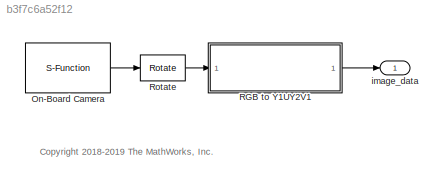
MODEL slx_b3f7c6a52f12
KIND model
CONFIG AbsTol = auto
CONFIG EnableMultiTasking = off
CONFIG FixedStep = VTs
CONFIG MaxStep = auto
CONFIG MinStep = auto
CONFIG RelTol = 1e-3
CONFIG SampleTimeConstraint = Unconstrained
CONFIG SolverName = FixedStepDiscrete
CONFIG StartTime = 0.0
CONFIG StopTime = 10.0
BLOCK [S-Function] On-Board Camera
  CloseFcn = vrmfunc('FnClose', gcbh);
  ContinueFcn = vrmfunc('FnSimStatus', gcbh, 'running');
  CopyFcn = vrmfunc('FnCopy', gcbh);
  DeleteFcn = vrmfunc('FnDelete', gcbh);
  DestroyFcn = vrmfunc('FnDestroy', gcbh);
  EnableBusSupport = off
  FunctionName = vrsfunc
  InitFcn = asb_vrmfunc(gcbh);
  InstantiateOnLoad = on
  LoadFcn = vrmfunc('FnLoad', gcbh);
  OpenFcn = vrmfunc('FnOpen', gcbh);
  Parameters = SampleTime, VideoDimensions, false
  PauseFcn = vrmfunc('FnSimStatus', gcbh, 'paused');
  Ports = [0, 1]
  PreSaveFcn = vrmfunc('FnPreSave', gcbh);
  SFcnIsStateOwnerBlock = off
  SFunctionDeploymentMode = off
  StartFcn = vrmfunc('FnSimStatus', gcbh, 'running')
  StopFcn = vrmfunc('FnStop', gcbh)
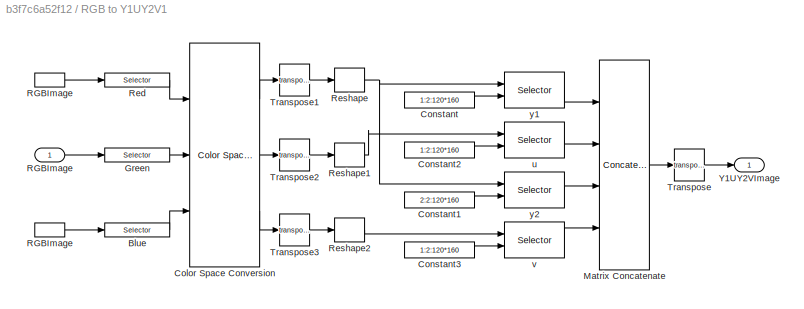
BLOCK [SubSystem] RGB to Y1UY2V1
  Ports = [1, 1]
  RequestExecContextInheritance = off
BLOCK [InportShadow] RGB to Y1UY2V1/ RGBImage 
  OutDataTypeStr = uint8
  PortDimensions = [120 160 3]
BLOCK [Selector] RGB to Y1UY2V1/Blue
  IndexOptions = Select all,Select all,Index vector (dialog)
  Indices = 1,1,3
  InputPortWidth = 3
  NumberOfDimensions = 3
  OutputSizes = 1,1,1
  Ports = [1, 1]
BLOCK [Reference] RGB to Y1UY2V1/Color Space Conversion  REF=visionconversions/Color Space
 Conversion
  Ports = [3, 3]
  SourceBlock = visionconversions/Color Space\n Conversion
  SourceProductName = Computer Vision Toolbox
  SourceType = Color Space Conversion
BLOCK [Constant] RGB to Y1UY2V1/Constant
  Value = 1:2:120*160
BLOCK [Constant] RGB to Y1UY2V1/Constant1
  Value = 2:2:120*160
BLOCK [Constant] RGB to Y1UY2V1/Constant2
  Value = 1:2:120*160
BLOCK [Constant] RGB to Y1UY2V1/Constant3
  Value = 1:2:120*160
BLOCK [Selector] RGB to Y1UY2V1/Green
  IndexOptions = Select all,Select all,Index vector (dialog)
  Indices = 1,1,2
  InputPortWidth = 3
  NumberOfDimensions = 3
  OutputSizes = 1,1,1
  Ports = [1, 1]
BLOCK [Concatenate] RGB to Y1UY2V1/Matrix Concatenate
  ConcatenateDimension = 2
  Mode = Multidimensional array
  NumInputs = 4
  Ports = [4, 1]
BLOCK [Inport] RGB to Y1UY2V1/RGBImage
  OutDataTypeStr = uint8
  PortDimensions = [120 160 3]
BLOCK [InportShadow] RGB to Y1UY2V1/RGBImage 
  OutDataTypeStr = uint8
  PortDimensions = [120 160 3]
BLOCK [Selector] RGB to Y1UY2V1/Red
  IndexOptions = Select all,Select all,Index vector (dialog)
  Indices = 1,1,1
  InputPortWidth = 3
  NumberOfDimensions = 3
  OutputSizes = 1,1,1
  Ports = [1, 1]
BLOCK [Reshape] RGB to Y1UY2V1/Reshape
  Ports = [1, 1]
BLOCK [Reshape] RGB to Y1UY2V1/Reshape1
  Ports = [1, 1]
BLOCK [Reshape] RGB to Y1UY2V1/Reshape2
  Ports = [1, 1]
BLOCK [Math] RGB to Y1UY2V1/Transpose
  Operator = transpose
  Ports = [1, 1]
  SignedPower = on
BLOCK [Math] RGB to Y1UY2V1/Transpose1
  Operator = transpose
  Ports = [1, 1]
  SignedPower = on
BLOCK [Math] RGB to Y1UY2V1/Transpose2
  Operator = transpose
  Ports = [1, 1]
  SignedPower = on
BLOCK [Math] RGB to Y1UY2V1/Transpose3
  Operator = transpose
  Ports = [1, 1]
  SignedPower = on
BLOCK [Outport] RGB to Y1UY2V1/Y1UY2VImage
  OutDataTypeStr = uint8
  PortDimensions = [4 9600]
  VectorParamsAs1DForOutWhenUnconnected = off
BLOCK [Selector] RGB to Y1UY2V1/u
  IndexOptions = Index vector (port)
  Indices = [1 3]
  InputPortWidth = 120*160
  OutputSizes = 1
  Ports = [2, 1]
BLOCK [Selector] RGB to Y1UY2V1/v
  IndexOptions = Index vector (port)
  Indices = [1 3]
  InputPortWidth = 120*160
  OutputSizes = 1
  Ports = [2, 1]
BLOCK [Selector] RGB to Y1UY2V1/y1
  IndexOptions = Index vector (port)
  Indices = [1 3]
  InputPortWidth = 120*160
  OutputSizes = 1
  Ports = [2, 1]
BLOCK [Selector] RGB to Y1UY2V1/y2
  IndexOptions = Index vector (port)
  Indices = [1 3]
  InputPortWidth = 120*160
  OutputSizes = 1
  Ports = [2, 1]
BLOCK [Reference] Rotate  REF=visiongeotforms/Rotate
  Ports = [1, 1]
  SourceBlock = visiongeotforms/Rotate
  SourceProductName = Computer Vision Toolbox
  SourceType = Rotate
BLOCK [Outport] image_data
  PortDimensions = [4 9600]
  VectorParamsAs1DForOutWhenUnconnected = off
ANNOTATION (root): <copyright redacted>
LINE On-Board Camera:1 -> Rotate:1
LINE RGB to Y1UY2V1/ RGBImage :1 -> RGB to Y1UY2V1/Red:1
LINE RGB to Y1UY2V1/Blue:1 -> RGB to Y1UY2V1/Color Space Conversion:3
LINE RGB to Y1UY2V1/Color Space Conversion:1 -> RGB to Y1UY2V1/Transpose1:1
LINE RGB to Y1UY2V1/Color Space Conversion:2 -> RGB to Y1UY2V1/Transpose2:1
LINE RGB to Y1UY2V1/Color Space Conversion:3 -> RGB to Y1UY2V1/Transpose3:1
LINE RGB to Y1UY2V1/Constant1:1 -> RGB to Y1UY2V1/y2:2
LINE RGB to Y1UY2V1/Constant2:1 -> RGB to Y1UY2V1/u:2
LINE RGB to Y1UY2V1/Constant3:1 -> RGB to Y1UY2V1/v:2
LINE RGB to Y1UY2V1/Constant:1 -> RGB to Y1UY2V1/y1:2
LINE RGB to Y1UY2V1/Green:1 -> RGB to Y1UY2V1/Color Space Conversion:2
LINE RGB to Y1UY2V1/Matrix Concatenate:1 -> RGB to Y1UY2V1/Transpose:1
LINE RGB to Y1UY2V1/RGBImage :1 -> RGB to Y1UY2V1/Blue:1
LINE RGB to Y1UY2V1/RGBImage:1 -> RGB to Y1UY2V1/Green:1
LINE RGB to Y1UY2V1/Red:1 -> RGB to Y1UY2V1/Color Space Conversion:1
LINE RGB to Y1UY2V1/Reshape1:1 -> RGB to Y1UY2V1/u:1
LINE RGB to Y1UY2V1/Reshape2:1 -> RGB to Y1UY2V1/v:1
NET RGB to Y1UY2V1/Reshape:1 -> RGB to Y1UY2V1/y1:1, RGB to Y1UY2V1/y2:1
LINE RGB to Y1UY2V1/Transpose1:1 -> RGB to Y1UY2V1/Reshape:1
LINE RGB to Y1UY2V1/Transpose2:1 -> RGB to Y1UY2V1/Reshape1:1
LINE RGB to Y1UY2V1/Transpose3:1 -> RGB to Y1UY2V1/Reshape2:1
LINE RGB to Y1UY2V1/Transpose:1 -> RGB to Y1UY2V1/Y1UY2VImage:1
LINE RGB to Y1UY2V1/u:1 -> RGB to Y1UY2V1/Matrix Concatenate:2
LINE RGB to Y1UY2V1/v:1 -> RGB to Y1UY2V1/Matrix Concatenate:4
LINE RGB to Y1UY2V1/y1:1 -> RGB to Y1UY2V1/Matrix Concatenate:1
LINE RGB to Y1UY2V1/y2:1 -> RGB to Y1UY2V1/Matrix Concatenate:3
LINE RGB to Y1UY2V1:1 -> image_data:1
LINE Rotate:1 -> RGB to Y1UY2V1:1
note: NET lines group one-source signal fan-out (src -> all destinations, sorted); 1:1 wires keep LINE
